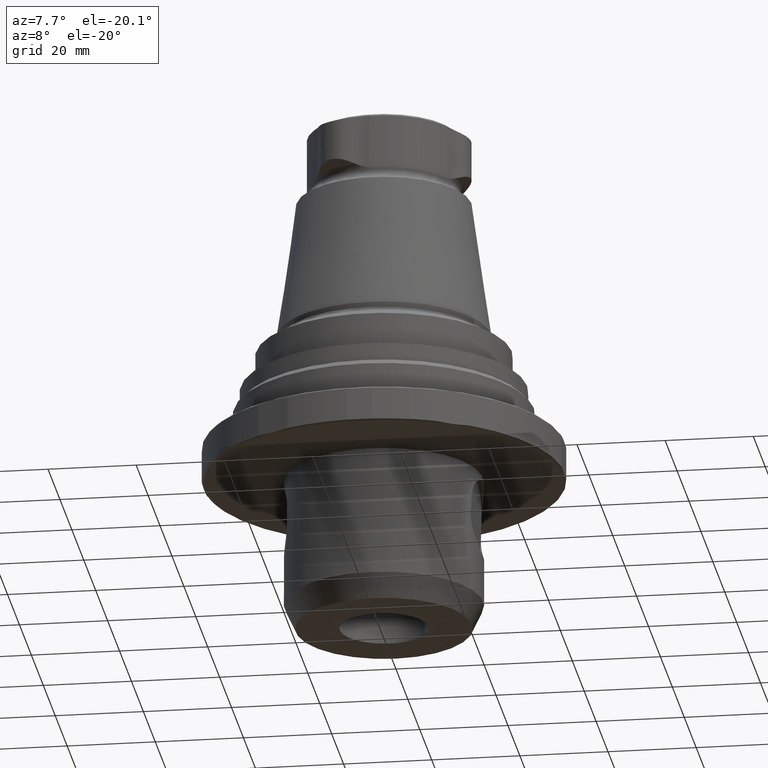
[diagram: clean part render]
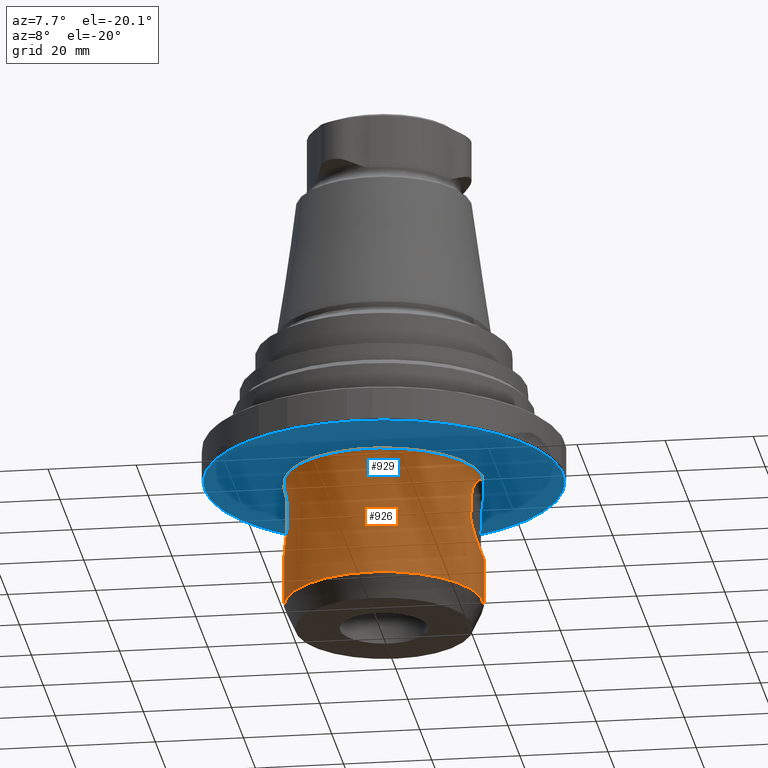
[diagram: same view with the hole feature highlighted: cylindrical wall and planar end face, labeled with their STEP entity ids]
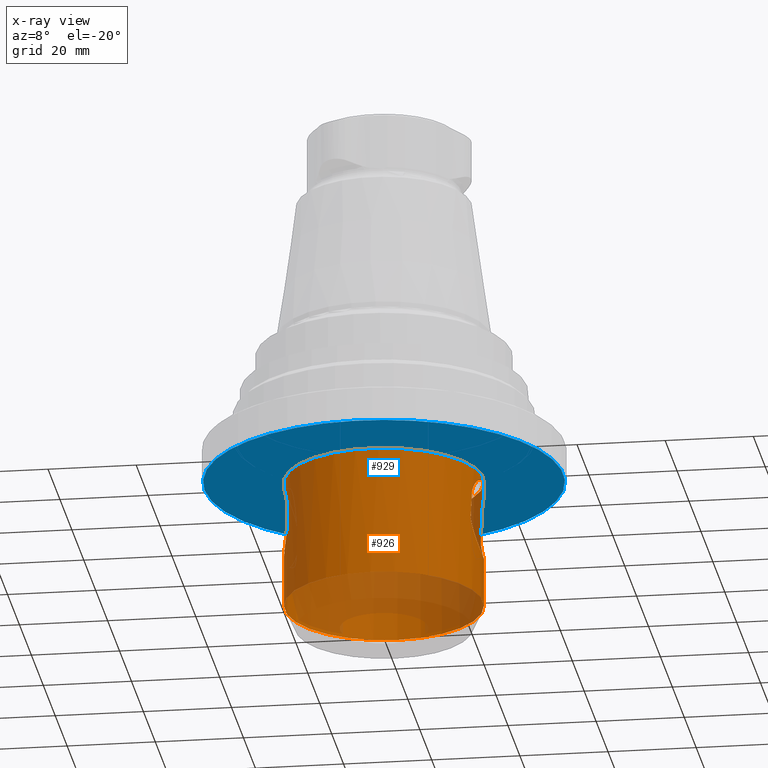
[diagram: x-ray of the same camera — body ghosted, the hole faces saturated]
A machine part, auxiliary view. The highlighted faces form one hole feature of diameter 45 mm: the cylindrical wall (entity #926, orange) and its adjacent planar end face (entity #929, blue) — they share a circular edge in the B-rep.
The next image is the same camera in x-ray (body ghosted, the hole faces saturated) — the bore reads through the body.
Wall:
#56=ELLIPSE('',#1008,644.708437826493,22.5);
#57=ELLIPSE('',#1009,644.708437826493,22.5);
#58=CIRCLE('',#1006,22.5);
#59=CIRCLE('',#1007,22.5);
#113=LINE('',#1419,#143);
#114=LINE('',#1431,#144);
#143=VECTOR('',#1132,1000.);
#144=VECTOR('',#1133,1000.);
#173=ORIENTED_EDGE('',*,*,#435,.F.);
#174=ORIENTED_EDGE('',*,*,#436,.F.);
#175=ORIENTED_EDGE('',*,*,#437,.F.);
#176=ORIENTED_EDGE('',*,*,#438,.F.);
#177=ORIENTED_EDGE('',*,*,#439,.F.);
#178=ORIENTED_EDGE('',*,*,#440,.T.);
#179=ORIENTED_EDGE('',*,*,#441,.T.);
#180=ORIENTED_EDGE('',*,*,#442,.T.);
#181=ORIENTED_EDGE('',*,*,#443,.T.);
#182=ORIENTED_EDGE('',*,*,#444,.T.);
#435=EDGE_CURVE('',#566,#567,#662,.T.);
#436=EDGE_CURVE('',#568,#566,#113,.F.);
#437=EDGE_CURVE('',#569,#568,#663,.T.);
#438=EDGE_CURVE('',#567,#569,#114,.T.);
#439=EDGE_CURVE('',#570,#570,#58,.T.);
#440=EDGE_CURVE('',#571,#571,#59,.T.);
#441=EDGE_CURVE('',#572,#573,#56,.F.);
#442=EDGE_CURVE('',#573,#574,#664,.T.);
#443=EDGE_CURVE('',#574,#575,#57,.F.);
#444=EDGE_CURVE('',#575,#572,#665,.T.);
#566=VERTEX_POINT('',#1417);
#567=VERTEX_POINT('',#1418);
#568=VERTEX_POINT('',#1420);
#569=VERTEX_POINT('',#1430);
#570=VERTEX_POINT('',#1433);
#571=VERTEX_POINT('',#1435);
#572=VERTEX_POINT('',#1437);
#573=VERTEX_POINT('',#1438);
#574=VERTEX_POINT('',#1449);
#575=VERTEX_POINT('',#1451);
#662=B_SPLINE_CURVE_WITH_KNOTS('',3,(#1408,#1409,#1410,#1411,#1412,#1413,
#1414,#1415,#1416),.UNSPECIFIED.,.F.,.F.,(4,1,1,1,1,1,4),(0.,0.00536560802738239,
0.00804841204107359,0.0107312160547648,0.013414020068456,0.0160968240821472,
0.0214624321095296),.UNSPECIFIED.);
#663=B_SPLINE_CURVE_WITH_KNOTS('',3,(#1421,#1422,#1423,#1424,#1425,#1426,
#1427,#1428,#1429),.UNSPECIFIED.,.F.,.F.,(4,1,1,1,1,1,4),(0.,0.0053656080273824,
0.0080484120410736,0.0107312160547648,0.013414020068456,0.0160968240821472,
0.0214624321095296),.UNSPECIFIED.);
#664=B_SPLINE_CURVE_WITH_KNOTS('',3,(#1439,#1440,#1441,#1442,#1443,#1444,
#1445,#1446,#1447,#1448),.UNSPECIFIED.,.F.,.F.,(4,1,1,1,1,1,1,4),(4.97398917248232E-15,
0.00286372112196091,0.00572744224391684,0.00859116336587278,0.0114548844878287,
0.0143186056097846,0.0171823267317406,0.0229097689756525),.UNSPECIFIED.);
#665=B_SPLINE_CURVE_WITH_KNOTS('',3,(#1452,#1453,#1454,#1455,#1456,#1457,
#1458),.UNSPECIFIED.,.F.,.F.,(4,1,1,1,4),(3.73983449539901E-15,0.00489644193384316,
0.00979288386768257,0.014689325801522,0.0195857677353614),.UNSPECIFIED.);
#706=EDGE_LOOP('',(#173,#174,#175,#176));
#707=EDGE_LOOP('',(#177));
#708=EDGE_LOOP('',(#178));
#709=EDGE_LOOP('',(#179,#180,#181,#182));
#801=FACE_BOUND('',#706,.T.);
#802=FACE_BOUND('',#707,.T.);
#803=FACE_BOUND('',#708,.T.);
#804=FACE_BOUND('',#709,.T.);
#896=CYLINDRICAL_SURFACE('',#1005,22.5);
#926=ADVANCED_FACE('',(#801,#802,#803,#804),#896,.T.);
#1005=AXIS2_PLACEMENT_3D('',#1407,#1130,#1131);
#1006=AXIS2_PLACEMENT_3D('',#1432,#1134,#1135);
#1007=AXIS2_PLACEMENT_3D('',#1434,#1136,#1137);
#1008=AXIS2_PLACEMENT_3D('',#1436,#1138,#1139);
#1009=AXIS2_PLACEMENT_3D('',#1450,#1140,#1141);
#1130=DIRECTION('',(0.,0.,-1.));
#1131=DIRECTION('',(0.,1.,0.));
#1132=DIRECTION('',(0.,0.,-1.));
#1133=DIRECTION('',(0.,0.,-1.));
#1134=DIRECTION('',(0.,0.,-1.));
#1135=DIRECTION('',(0.,1.,0.));
#1136=DIRECTION('',(1.22461692971323E-16,-7.49836836562635E-33,-1.));
#1137=DIRECTION('',(-1.,0.,-1.22461692971323E-16));
#1138=DIRECTION('',(0.999390827019096,0.,-0.0348994967025006));
#1139=DIRECTION('',(-0.0348994967025006,0.,-0.999390827019096));
#1140=DIRECTION('',(0.999390827019096,0.,-0.0348994967025006));
#1141=DIRECTION('',(-0.0348994967025006,0.,-0.999390827019096));
#1407=CARTESIAN_POINT('',(0.,0.,-40.));
#1408=CARTESIAN_POINT('',(-20.9,-8.33306666239986,-15.6));
#1409=CARTESIAN_POINT('',(-21.1703819636855,-7.65492699666016,-13.937946164404));
#1410=CARTESIAN_POINT('',(-21.8001027999194,-5.93602329487883,-11.8374931586274));
#1411=CARTESIAN_POINT('',(-22.3880620598175,-2.70283227896427,-10.2744099280601));
#1412=CARTESIAN_POINT('',(-22.5555491124783,-0.00730781345645014,-9.86384087591769));
#1413=CARTESIAN_POINT('',(-22.3897350706866,2.69043076628923,-10.2702426172274));
#1414=CARTESIAN_POINT('',(-21.8017730073251,5.93183675295997,-11.8321396577198));
#1415=CARTESIAN_POINT('',(-21.1704035064686,7.654872965631,-13.9378137396487));
#1416=CARTESIAN_POINT('',(-20.9,8.33306666239986,-15.6));
#1417=CARTESIAN_POINT('',(-20.9,-8.33306666239986,-15.6));
#1418=CARTESIAN_POINT('',(-20.9,8.33306666239986,-15.6));
#1419=CARTESIAN_POINT('',(-20.9,-8.33306666239986,-40.));
#1420=CARTESIAN_POINT('',(-20.9,-8.33306666239986,-22.4));
#1421=CARTESIAN_POINT('',(-20.9,8.33306666239986,-22.4));
#1422=CARTESIAN_POINT('',(-21.1703819636855,7.65492699666016,-24.062053835596));
#1423=CARTESIAN_POINT('',(-21.8001027999194,5.93602329487883,-26.1625068413725));
#1424=CARTESIAN_POINT('',(-22.3880620598175,2.70283227896427,-27.7255900719399));
#1425=CARTESIAN_POINT('',(-22.5555491124783,0.00730781345644901,-28.1361591240823));
#1426=CARTESIAN_POINT('',(-22.3897350706866,-2.69043076628923,-27.7297573827725));
#1427=CARTESIAN_POINT('',(-21.8017730073251,-5.93183675295997,-26.1678603422802));
#1428=CARTESIAN_POINT('',(-21.1704035064686,-7.654872965631,-24.0621862603513));
#1429=CARTESIAN_POINT('',(-20.9,-8.33306666239986,-22.4));
#1430=CARTESIAN_POINT('',(-20.9,8.33306666239986,-22.4));
#1431=CARTESIAN_POINT('',(-20.9,8.33306666239986,-40.));
#1432=CARTESIAN_POINT('',(0.,0.,-38.6387326987261));
#1433=CARTESIAN_POINT('',(0.,22.5,-38.6387326987261));
#1434=CARTESIAN_POINT('',(0.,0.,-8.99999999999999));
#1435=CARTESIAN_POINT('',(-22.5,0.,-8.99999999999999));
#1436=CARTESIAN_POINT('',(0.,0.,-617.469765509057));
#1437=CARTESIAN_POINT('',(21.0481025278498,7.95156462446782,-14.7309703967677));
#1438=CARTESIAN_POINT('',(20.8048226367791,8.56792594809812,-21.6975949761092));
#1439=CARTESIAN_POINT('',(20.8048226367792,8.56792594809969,-21.6975949761043));
#1440=CARTESIAN_POINT('',(20.925469232057,8.27496928254379,-22.6134082028939));
#1441=CARTESIAN_POINT('',(21.2648508373834,7.42047415450709,-24.3044369901586));
#1442=CARTESIAN_POINT('',(21.8777916498761,5.42803709790654,-26.3457492917868));
#1443=CARTESIAN_POINT('',(22.370582152313,2.89189019317144,-27.6835867026684));
#1444=CARTESIAN_POINT('',(22.5636946077386,0.0165099207784748,-28.1638126015014));
#1445=CARTESIAN_POINT('',(22.3746073224508,-2.86484145039547,-27.6939968780439));
#1446=CARTESIAN_POINT('',(21.7168830172911,-6.26379184829726,-25.9101091512997));
#1447=CARTESIAN_POINT('',(21.0460913731326,-7.98207199721132,-23.5290358008815));
#1448=CARTESIAN_POINT('',(20.8048226367807,-8.56792594809842,-21.6975949761083));
#1449=CARTESIAN_POINT('',(20.804822636779,-8.56792594809727,-21.6975949761118));
#1450=CARTESIAN_POINT('',(0.,0.,-617.469765509057));
#1451=CARTESIAN_POINT('',(21.0481025278501,-7.95156462446399,-14.7309703967604));
#1452=CARTESIAN_POINT('',(21.0481025278499,-7.95156462446579,-14.7309703967639));
#1453=CARTESIAN_POINT('',(21.3380875890497,-7.18396282684009,-13.2924001369124));
#1454=CARTESIAN_POINT('',(22.1035934459683,-4.91657681623182,-10.918463612995));
#1455=CARTESIAN_POINT('',(22.6968458266336,-0.00577150258694133,-9.53638135195989));
#1456=CARTESIAN_POINT('',(22.1090156186232,4.89427785150457,-10.9031144044373));
#1457=CARTESIAN_POINT('',(21.3380541942883,7.18405122408342,-13.2925658030747));
#1458=CARTESIAN_POINT('',(21.0481025278506,7.95156462446789,-14.7309703967678));
End face:
#40=PLANE('',#1014);
#59=CIRCLE('',#1007,22.5);
#62=CIRCLE('',#1015,40.7);
#187=ORIENTED_EDGE('',*,*,#440,.F.);
#188=ORIENTED_EDGE('',*,*,#447,.T.);
#440=EDGE_CURVE('',#571,#571,#59,.T.);
#447=EDGE_CURVE('',#578,#578,#62,.T.);
#571=VERTEX_POINT('',#1435);
#578=VERTEX_POINT('',#1467);
#714=EDGE_LOOP('',(#187));
#715=EDGE_LOOP('',(#188));
#809=FACE_BOUND('',#714,.T.);
#810=FACE_BOUND('',#715,.T.);
#929=ADVANCED_FACE('',(#809,#810),#40,.T.);
#1007=AXIS2_PLACEMENT_3D('',#1434,#1136,#1137);
#1014=AXIS2_PLACEMENT_3D('',#1465,#1150,#1151);
#1015=AXIS2_PLACEMENT_3D('',#1466,#1152,#1153);
#1136=DIRECTION('',(1.22461692971323E-16,-7.49836836562635E-33,-1.));
#1137=DIRECTION('',(-1.,0.,-1.22461692971323E-16));
#1150=DIRECTION('',(1.22461692971323E-16,-7.49836836562635E-33,-1.));
#1151=DIRECTION('',(-1.,6.12303176911189E-17,-1.22461692971323E-16));
#1152=DIRECTION('',(-7.30126435159279E-33,-9.52839055771651E-18,-1.));
#1153=DIRECTION('',(-1.,-8.32667268468868E-17,2.89465139560709E-33));
#1434=CARTESIAN_POINT('',(0.,0.,-8.99999999999999));
#1435=CARTESIAN_POINT('',(-22.5,0.,-8.99999999999999));
#1465=CARTESIAN_POINT('',(-30.5,1.86752468957913E-15,-8.99999999999999));
#1466=CARTESIAN_POINT('',(7.88665112559661E-15,-1.67699673815811E-16,-9.));
#1467=CARTESIAN_POINT('',(-40.7,-3.5566554564841E-15,-9.));